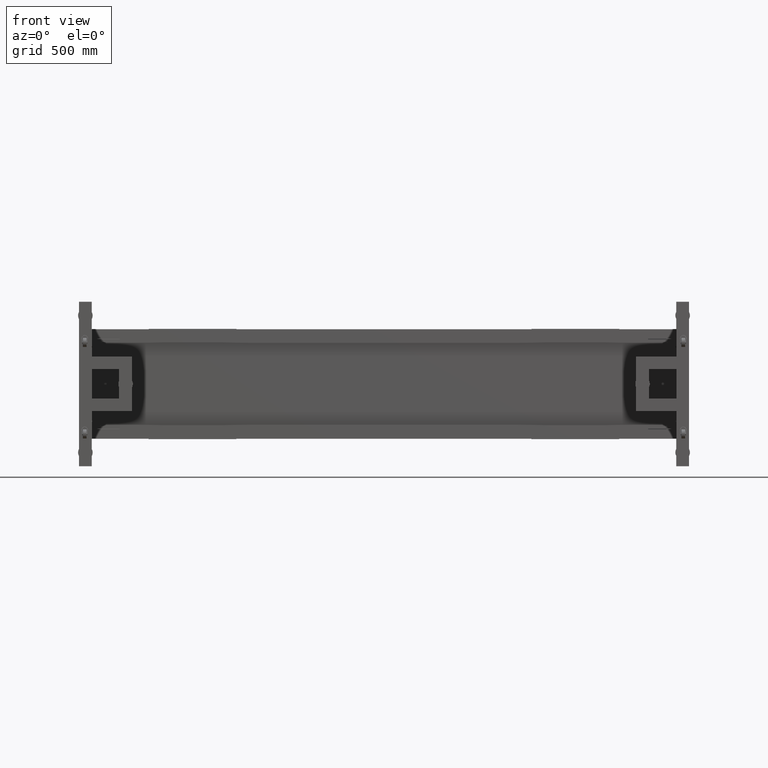
[diagram: clean part render]
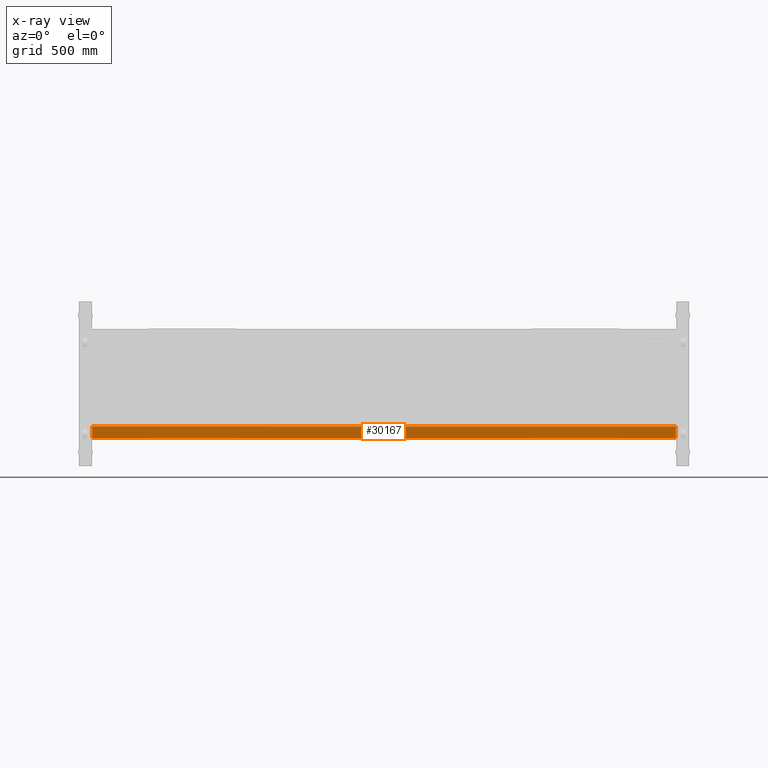
[diagram: x-ray — body ghosted, one internal face saturated and labeled with its STEP entity id]
A machine part, front view, then the same camera in x-ray: the body is ghosted and one INTERNAL B-rep face — a face not visible from any outside direction — is saturated and labeled: STEP entity #30167.
In plain terms, the highlighted planar face has unit normal (0, -1, -0).
Its self-contained STEP definition (entity closure, byte-faithful):
#1004 = CARTESIAN_POINT ( 'NONE',  ( 1929.827512562814718, 554.4410804020134265, -232.4999999999999147 ) ) ;
#3019 = CARTESIAN_POINT ( 'NONE',  ( 1929.827512562814718, 554.4410804020136538, -297.4999999999999432 ) ) ;
#4933 = EDGE_CURVE ( 'NONE', #13049, #26891, #66432, .T. ) ;
#5907 = VECTOR ( 'NONE', #52555, 1000.000000000000000 ) ;
#9196 = LINE ( 'NONE', #34151, #5907 ) ;
#12360 = ORIENTED_EDGE ( 'NONE', *, *, #4933, .F. ) ;
#13049 = VERTEX_POINT ( 'NONE', #15468 ) ;
#15468 = CARTESIAN_POINT ( 'NONE',  ( 1929.827512562814718, 554.4410804020134265, -232.4999999999999147 ) ) ;
#19301 = CARTESIAN_POINT ( 'NONE',  ( 1929.827512562814718, 554.4410804020136538, -297.4999999999999432 ) ) ;
#19835 = DIRECTION ( 'NONE',  ( -1.000000000000000000, -4.543257172554223644E-16, 0.000000000000000000 ) ) ;
#22594 = DIRECTION ( 'NONE',  ( -1.362977151766267009E-30, 2.999999999999999839E-15, -1.000000000000000000 ) ) ;
#23872 = EDGE_CURVE ( 'NONE', #32787, #64977, #9196, .T. ) ;
#26002 = CARTESIAN_POINT ( 'NONE',  ( 1929.827512562814718, 554.4410804020134265, -232.4999999999999147 ) ) ;
#26891 = VERTEX_POINT ( 'NONE', #19301 ) ;
#29714 = CARTESIAN_POINT ( 'NONE',  ( -1266.172487437185964, 554.4410804020122896, -232.4999999999999147 ) ) ;
#30167 = ADVANCED_FACE ( 'NONE', ( #62793 ), #75489, .T. ) ;
#32787 = VERTEX_POINT ( 'NONE', #29714 ) ;
#34151 = CARTESIAN_POINT ( 'NONE',  ( -1266.172487437185964, 554.4410804020122896, -232.4999999999999147 ) ) ;
#34265 = ORIENTED_EDGE ( 'NONE', *, *, #46388, .F. ) ;
#35163 = EDGE_LOOP ( 'NONE', ( #57200, #80470, #34265, #12360 ) ) ;
#39867 = DIRECTION ( 'NONE',  ( -1.000000000000000000, -4.543257172554223644E-16, 0.000000000000000000 ) ) ;
#41458 = CARTESIAN_POINT ( 'NONE',  ( 1929.827512562814718, 554.4410804020134265, -232.4999999999999147 ) ) ;
#46388 = EDGE_CURVE ( 'NONE', #26891, #64977, #59085, .T. ) ;
#50278 = CARTESIAN_POINT ( 'NONE',  ( -1266.172487437185964, 554.4410804020125170, -297.4999999999999432 ) ) ;
#52555 = DIRECTION ( 'NONE',  ( 0.000000000000000000, 2.999999999999999839E-15, -1.000000000000000000 ) ) ;
#56250 = DIRECTION ( 'NONE',  ( -1.362977151766267009E-30, 2.999999999999999839E-15, -1.000000000000000000 ) ) ;
#57200 = ORIENTED_EDGE ( 'NONE', *, *, #61512, .T. ) ;
#58646 = VECTOR ( 'NONE', #19835, 1000.000000000000000 ) ;
#59085 = LINE ( 'NONE', #3019, #77230 ) ;
#61512 = EDGE_CURVE ( 'NONE', #13049, #32787, #62834, .T. ) ;
#62793 = FACE_OUTER_BOUND ( 'NONE', #35163, .T. ) ;
#62834 = LINE ( 'NONE', #26002, #58646 ) ;
#64977 = VERTEX_POINT ( 'NONE', #50278 ) ;
#66432 = LINE ( 'NONE', #41458, #75206 ) ;
#68953 = DIRECTION ( 'NONE',  ( 4.543257172554223644E-16, -1.000000000000000000, -2.999999999999999839E-15 ) ) ;
#71577 = AXIS2_PLACEMENT_3D ( 'NONE', #1004, #68953, #56250 ) ;
#75206 = VECTOR ( 'NONE', #22594, 1000.000000000000000 ) ;
#75489 = PLANE ( 'NONE',  #71577 ) ;
#77230 = VECTOR ( 'NONE', #39867, 1000.000000000000000 ) ;
#80470 = ORIENTED_EDGE ( 'NONE', *, *, #23872, .T. ) ;